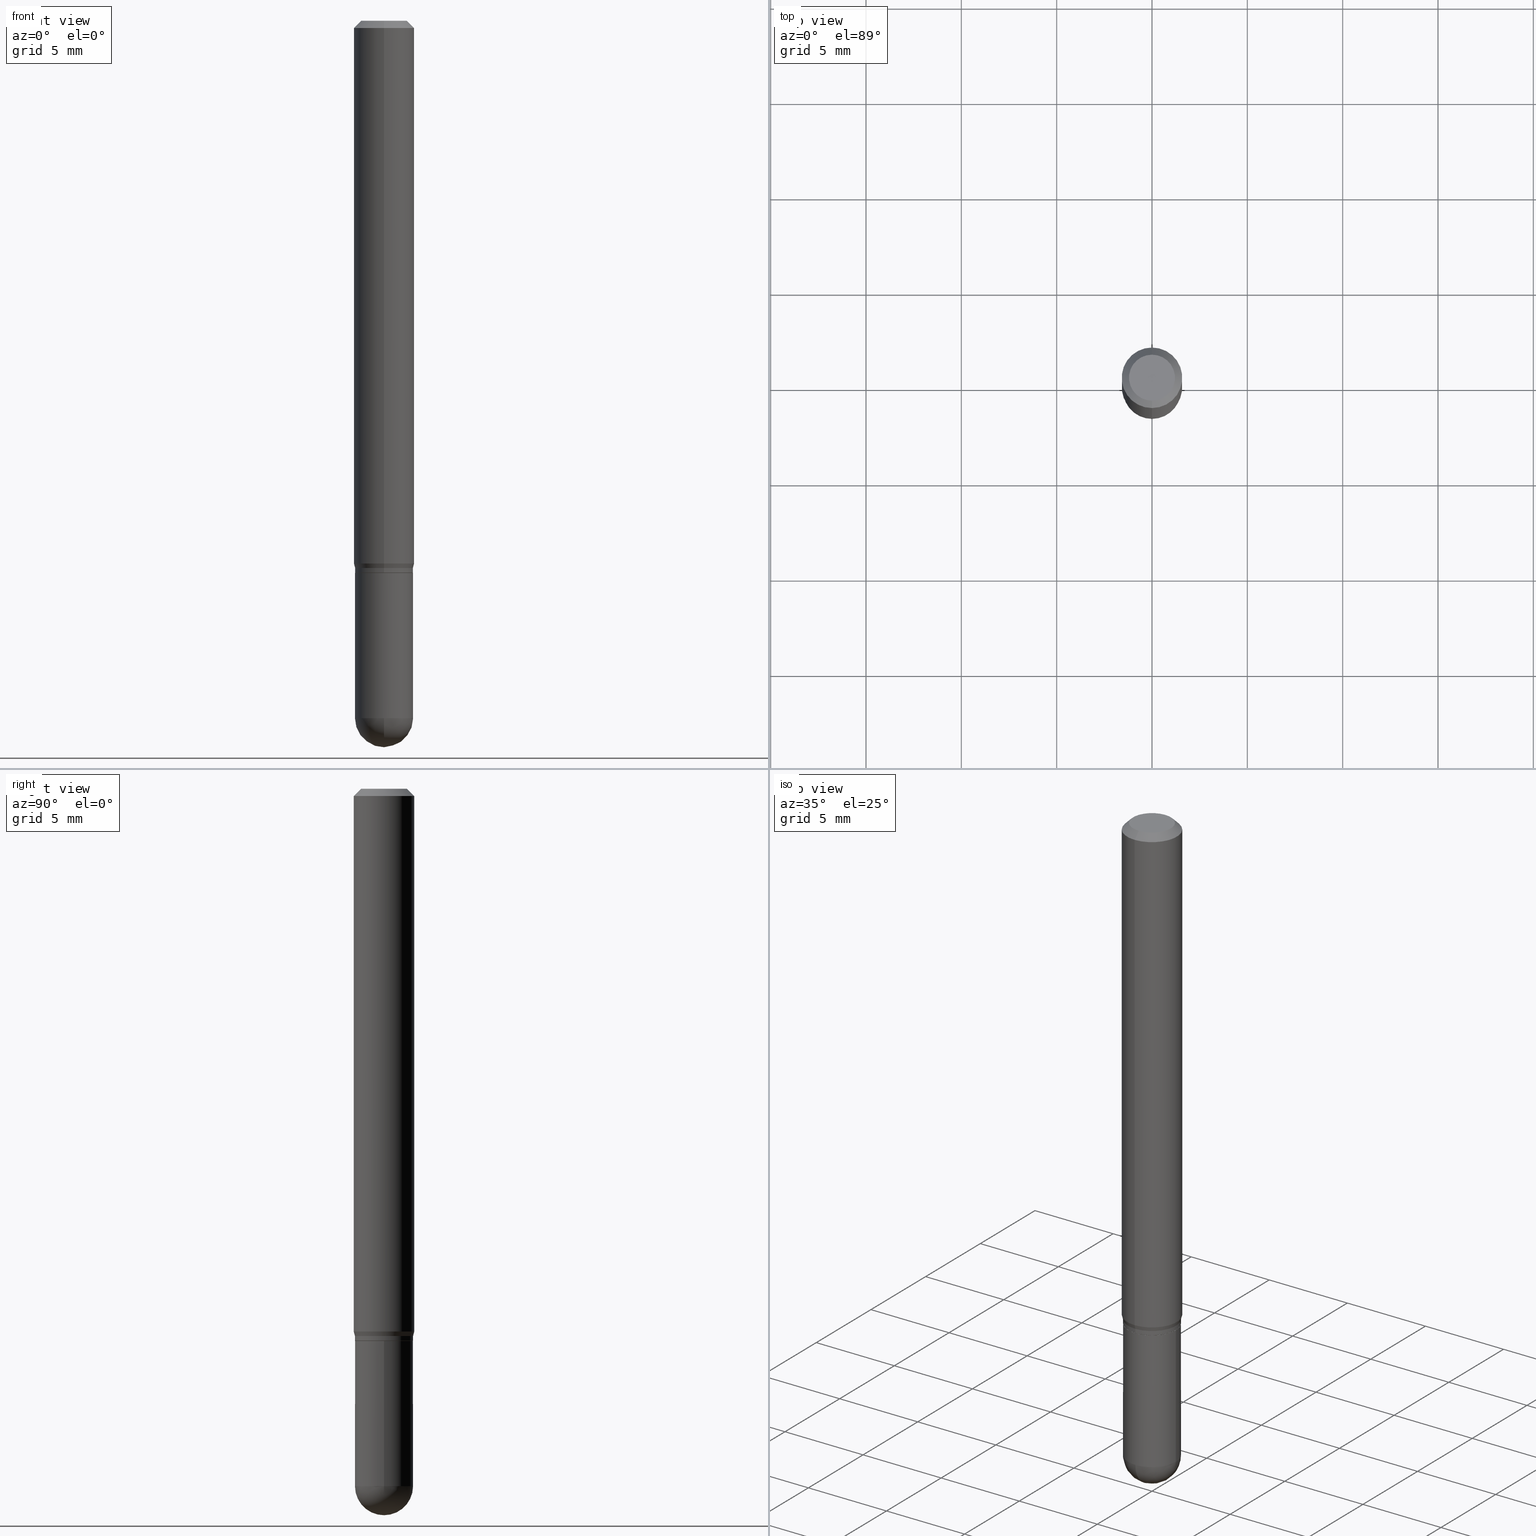
[diagram: canonical four-view strip — front | top / right | iso, engineering-drawing reading convention]
A machine part, canonical four-view strip (front | top / right | iso — engineering-drawing reading convention). The complete STEP part file that produces these views, byte-faithful:
ISO-10303-21;
HEADER;
FILE_DESCRIPTION (( 'STEP AP203' ),
    '1' );
FILE_NAME ('00951.STEP',
    '2024-03-07T19:09:57',
    ( '' ),
    ( '' ),
    'SwSTEP 2.0',
    'SolidWorks 2023',
    '' );
FILE_SCHEMA (( 'CONFIG_CONTROL_DESIGN' ));
ENDSEC;

DATA;
#1 = COORDINATED_UNIVERSAL_TIME_OFFSET ( 5, 0, .BEHIND. ) ;
#2 = DESIGN_CONTEXT ( 'detailed design', #499, 'design' ) ;
#3 = FACE_OUTER_BOUND ( 'NONE', #407, .T. ) ;
#4 = VERTEX_POINT ( 'NONE', #493 ) ;
#5 = CARTESIAN_POINT ( 'NONE',  ( -0.06000000000000001166, 4.263256414560601944E-16, -2.951361054152943763E-30 ) ) ;
#6 = VERTEX_POINT ( 'NONE', #62 ) ;
#7 = DIRECTION ( 'NONE',  ( -2.445441325104766561E-29, 3.491520693314361482E-15, 1.000000000000000000 ) ) ;
#8 = APPROVAL ( #31, 'UNSPECIFIED' ) ;
#9 = AXIS2_PLACEMENT_3D ( 'NONE', #135, #411, #301 ) ;
#10 = CC_DESIGN_SECURITY_CLASSIFICATION ( #512, ( #463 ) ) ;
#11 = CARTESIAN_POINT ( 'NONE',  ( 0.06000000000000001166, -4.189777606611760914E-16, 2.925706065477562106E-30 ) ) ;
#12 = ORIENTED_EDGE ( 'NONE', *, *, #358, .F. ) ;
#13 = FACE_OUTER_BOUND ( 'NONE', #124, .T. ) ;
#14 = AXIS2_PLACEMENT_3D ( 'NONE', #196, #434, #189 ) ;
#15 = FACE_OUTER_BOUND ( 'NONE', #284, .T. ) ;
#16 = EDGE_CURVE ( 'NONE', #379, #372, #134, .T. ) ;
#17 = PLANE ( 'NONE',  #52 ) ;
#18 = VERTEX_POINT ( 'NONE', #58 ) ;
#19 = AXIS2_PLACEMENT_3D ( 'NONE', #396, #433, #39 ) ;
#20 = AXIS2_PLACEMENT_3D ( 'NONE', #322, #238, #288 ) ;
#21 = PLANE ( 'NONE',  #320 ) ;
#22 = ORIENTED_EDGE ( 'NONE', *, *, #170, .T. ) ;
#23 = APPLICATION_CONTEXT ( 'configuration controlled 3d designs of mechanical parts and assemblies' ) ;
#24 = COORDINATED_UNIVERSAL_TIME_OFFSET ( 5, 0, .BEHIND. ) ;
#25 = CARTESIAN_POINT ( 'NONE',  ( 3.516344083171520973E-29, -5.035081008729014505E-15, -1.440000000000000169 ) ) ;
#26 = DIRECTION ( 'NONE',  ( -2.445441325104766561E-29, 3.491520693314361482E-15, 1.000000000000000000 ) ) ;
#27 = DIRECTION ( 'NONE',  ( -1.000000000000000000, 6.982962677686265922E-15, -4.883557194083112340E-29 ) ) ;
#28 = CONICAL_SURFACE ( 'NONE', #272, 0.06250000000000000000, 0.7853981633974483900 ) ;
#29 = APPROVAL_ROLE ( '' ) ;
#30 = LINE ( 'NONE', #185, #203 ) ;
#31 = APPROVAL_STATUS ( 'not_yet_approved' ) ;
#32 = EDGE_CURVE ( 'NONE', #399, #92, #45, .T. ) ;
#33 = AXIS2_PLACEMENT_3D ( 'NONE', #131, #212, #492 ) ;
#34 = DIRECTION ( 'NONE',  ( -6.982962677686265922E-15, -1.000000000000000000, 4.553079989440423315E-15 ) ) ;
#35 = CARTESIAN_POINT ( 'NONE',  ( 4.189777606612110478E-16, 0.05999999999999495320, -1.440000000000000391 ) ) ;
#36 = ORIENTED_EDGE ( 'NONE', *, *, #358, .T. ) ;
#37 = ADVANCED_FACE ( 'NONE', ( #223 ), #153, .T. ) ;
#38 = AXIS2_PLACEMENT_3D ( 'NONE', #46, #122, #357 ) ;
#39 = DIRECTION ( 'NONE',  ( -6.982962677686265922E-15, -1.000000000000000000, 4.370956789862821150E-15 ) ) ;
#40 = ORIENTED_EDGE ( 'NONE', *, *, #139, .F. ) ;
#41 = DIRECTION ( 'NONE',  ( -2.445468806185136597E-29, 3.491481338843145583E-15, 1.000000000000000000 ) ) ;
#42 = EDGE_CURVE ( 'NONE', #4, #379, #401, .T. ) ;
#43 = CARTESIAN_POINT ( 'NONE',  ( 2.740532419187838952E-29, -3.912842051887413141E-15, -1.120669872981078674 ) ) ;
#44 = ORIENTED_EDGE ( 'NONE', *, *, #154, .F. ) ;
#45 = CIRCLE ( 'NONE', #336, 0.06000000000000019901 ) ;
#46 = CARTESIAN_POINT ( 'NONE',  ( 0.000000000000000000, 0.000000000000000000, 0.000000000000000000 ) ) ;
#47 = ORIENTED_EDGE ( 'NONE', *, *, #373, .T. ) ;
#48 = EDGE_CURVE ( 'NONE', #417, #237, #177, .T. ) ;
#49 = DIRECTION ( 'NONE',  ( -6.982962677686265922E-15, -1.000000000000000000, 4.591341165822291216E-15 ) ) ;
#50 = ORIENTED_EDGE ( 'NONE', *, *, #107, .F. ) ;
#51 = CARTESIAN_POINT ( 'NONE',  ( -0.05999999999999999778, -4.077685285651597789E-15, -1.140000000000000124 ) ) ;
#52 = AXIS2_PLACEMENT_3D ( 'NONE', #404, #445, #330 ) ;
#53 = EDGE_LOOP ( 'NONE', ( #440, #36, #126, #365 ) ) ;
#54 =( GEOMETRIC_REPRESENTATION_CONTEXT ( 3 ) GLOBAL_UNCERTAINTY_ASSIGNED_CONTEXT ( ( #429 ) ) GLOBAL_UNIT_ASSIGNED_CONTEXT ( ( #142, #182, #109 ) ) REPRESENTATION_CONTEXT ( 'NONE', 'WORKASPACE' ) );
#55 = DATE_AND_TIME ( #377, #291 ) ;
#56 = SPHERICAL_SURFACE ( 'NONE', #119, 0.05999999999999995615 ) ;
#57 = PERSON_AND_ORGANIZATION ( #273, #380 ) ;
#58 = CARTESIAN_POINT ( 'NONE',  ( -4.189777606611479882E-16, -0.06000000000000396683, -1.139499999999999735 ) ) ;
#59 = CC_DESIGN_PERSON_AND_ORGANIZATION_ASSIGNMENT ( #220, #78, ( #463 ) ) ;
#60 = CARTESIAN_POINT ( 'NONE',  ( 4.189777606612038494E-16, 0.05999999999999602179, -1.140000000000000346 ) ) ;
#61 = PERSON_AND_ORGANIZATION ( #273, #380 ) ;
#62 = CARTESIAN_POINT ( 'NONE',  ( 3.665637710410167850E-29, -5.240895948662160894E-15, -1.500000000000000222 ) ) ;
#63 = DIRECTION ( 'NONE',  ( -2.445441325104766561E-29, 3.491520693314361482E-15, 1.000000000000000000 ) ) ;
#64 = AXIS2_PLACEMENT_3D ( 'NONE', #239, #310, #274 ) ;
#65 = PERSON_AND_ORGANIZATION ( #273, #380 ) ;
#66 = EDGE_CURVE ( 'NONE', #324, #243, #167, .T. ) ;
#67 = PERSON_AND_ORGANIZATION_ROLE ( 'design_supplier' ) ;
#68 = ORIENTED_EDGE ( 'NONE', *, *, #286, .T. ) ;
#69 = PERSON_AND_ORGANIZATION_ROLE ( 'classification_officer' ) ;
#70 = VECTOR ( 'NONE', #376, 39.37007874015748143 ) ;
#71 = CALENDAR_DATE ( 2024, 7, 3 ) ;
#72 = DIRECTION ( 'NONE',  ( -2.445441325104766561E-29, 3.491520693314361482E-15, 1.000000000000000000 ) ) ;
#73 = DIRECTION ( 'NONE',  ( -6.982962677686265922E-15, -1.000000000000000000, 4.591341165822291216E-15 ) ) ;
#74 = CARTESIAN_POINT ( 'NONE',  ( 4.440892098500625669E-16, 0.06250000000000000000, -2.182200433321475680E-16 ) ) ;
#75 = PERSON_AND_ORGANIZATION ( #273, #380 ) ;
#76 = EDGE_LOOP ( 'NONE', ( #166, #359, #290, #427 ) ) ;
#77 = DIRECTION ( 'NONE',  ( -2.445441325104766561E-29, 3.491520693314361482E-15, 1.000000000000000000 ) ) ;
#78 = PERSON_AND_ORGANIZATION_ROLE ( 'creator' ) ;
#79 = AXIS2_PLACEMENT_3D ( 'NONE', #281, #361, #209 ) ;
#80 = ORIENTED_EDGE ( 'NONE', *, *, #88, .F. ) ;
#81 = CARTESIAN_POINT ( 'NONE',  ( 2.787803110619434407E-29, -3.980333590378373068E-15, -1.140000000000000124 ) ) ;
#82 = EDGE_CURVE ( 'NONE', #228, #4, #306, .T. ) ;
#83 = AXIS2_PLACEMENT_3D ( 'NONE', #387, #283, #347 ) ;
#84 = DIRECTION ( 'NONE',  ( 1.000000000000000000, -6.982962677686266711E-15, 0.000000000000000000 ) ) ;
#85 = ORIENTED_EDGE ( 'NONE', *, *, #311, .F. ) ;
#86 = FACE_OUTER_BOUND ( 'NONE', #483, .T. ) ;
#87 = ORIENTED_EDGE ( 'NONE', *, *, #318, .T. ) ;
#88 = EDGE_CURVE ( 'NONE', #379, #417, #156, .T. ) ;
#89 = CIRCLE ( 'NONE', #497, 0.06000000000000019901 ) ;
#90 = AXIS2_PLACEMENT_3D ( 'NONE', #213, #342, #298 ) ;
#91 = DIRECTION ( 'NONE',  ( -6.982962677686265922E-15, -1.000000000000000000, 4.370956789862821150E-15 ) ) ;
#92 = VERTEX_POINT ( 'NONE', #319 ) ;
#93 = DIRECTION ( 'NONE',  ( -2.445441325104766561E-29, 3.491520693314361482E-15, 1.000000000000000000 ) ) ;
#94 = FACE_OUTER_BOUND ( 'NONE', #459, .T. ) ;
#95 = EDGE_LOOP ( 'NONE', ( #437, #217 ) ) ;
#96 = DIRECTION ( 'NONE',  ( 1.000000000000000000, -6.982962677686268288E-15, 0.000000000000000000 ) ) ;
#97 = ORIENTED_EDGE ( 'NONE', *, *, #464, .T. ) ;
#98 = CIRCLE ( 'NONE', #385, 0.06000000000000006023 ) ;
#99 = CARTESIAN_POINT ( 'NONE',  ( 2.787834439051055989E-29, -3.980288726281186698E-15, -1.140000000000000124 ) ) ;
#100 = CC_DESIGN_PERSON_AND_ORGANIZATION_ASSIGNMENT ( #172, #101, ( #173 ) ) ;
#101 = PERSON_AND_ORGANIZATION_ROLE ( 'design_owner' ) ;
#102 = CONICAL_SURFACE ( 'NONE', #83, 0.06250000000000000000, 0.7853981633974483900 ) ;
#103 = DIRECTION ( 'NONE',  ( -2.445468806185136597E-29, 3.491481338843145583E-15, 1.000000000000000000 ) ) ;
#104 = CARTESIAN_POINT ( 'NONE',  ( 4.245492846166878976E-16, 0.05949999999999602135, -1.140000000000000346 ) ) ;
#105 = FACE_OUTER_BOUND ( 'NONE', #150, .T. ) ;
#106 = COORDINATED_UNIVERSAL_TIME_OFFSET ( 5, 0, .BEHIND. ) ;
#107 = EDGE_CURVE ( 'NONE', #18, #399, #316, .T. ) ;
#108 = CLOSED_SHELL ( 'NONE', ( #302, #292, #276, #250, #123 ) ) ;
#109 =( NAMED_UNIT ( * ) SI_UNIT ( $, .STERADIAN. ) SOLID_ANGLE_UNIT ( ) );
#110 = ORIENTED_EDGE ( 'NONE', *, *, #412, .F. ) ;
#111 = AXIS2_PLACEMENT_3D ( 'NONE', #275, #72, #323 ) ;
#112 = VECTOR ( 'NONE', #415, 39.37007874015748143 ) ;
#113 = CARTESIAN_POINT ( 'NONE',  ( -4.364351673553912750E-16, -0.06250000000000005551, -0.01499999999999979128 ) ) ;
#114 = DIRECTION ( 'NONE',  ( 4.937700262164548042E-15, 0.7071067811865451302, -0.7071067811865499042 ) ) ;
#115 = EDGE_LOOP ( 'NONE', ( #435, #47, #197, #391 ) ) ;
#116 = CARTESIAN_POINT ( 'NONE',  ( 2.787803110619434407E-29, -3.980333590378373068E-15, -1.140000000000000124 ) ) ;
#117 = EDGE_CURVE ( 'NONE', #331, #193, #178, .T. ) ;
#118 = DIRECTION ( 'NONE',  ( 2.445441325104766561E-29, -3.491520693314361482E-15, -1.000000000000000000 ) ) ;
#119 = AXIS2_PLACEMENT_3D ( 'NONE', #449, #27, #335 ) ;
#120 = ORIENTED_EDGE ( 'NONE', *, *, #307, .F. ) ;
#121 = DIRECTION ( 'NONE',  ( -2.445468806185136597E-29, 3.491481338843145583E-15, 1.000000000000000000 ) ) ;
#122 = DIRECTION ( 'NONE',  ( -2.445468806185136597E-29, 3.491481338843145583E-15, 1.000000000000000000 ) ) ;
#123 = ADVANCED_FACE ( 'NONE', ( #244 ), #360, .T. ) ;
#124 = EDGE_LOOP ( 'NONE', ( #152, #97, #87, #210 ) ) ;
#125 = DIRECTION ( 'NONE',  ( -6.982962677686265922E-15, -1.000000000000000000, 3.491520693314361088E-15 ) ) ;
#126 = ORIENTED_EDGE ( 'NONE', *, *, #400, .T. ) ;
#127 = AXIS2_PLACEMENT_3D ( 'NONE', #43, #165, #91 ) ;
#128 = CARTESIAN_POINT ( 'NONE',  ( 0.000000000000000000, 0.000000000000000000, 0.000000000000000000 ) ) ;
#129 = ORIENTED_EDGE ( 'NONE', *, *, #222, .T. ) ;
#130 = ADVANCED_FACE ( 'NONE', ( #367 ), #398, .T. ) ;
#131 = CARTESIAN_POINT ( 'NONE',  ( 3.668161987657152172E-31, -5.237281039971545133E-17, -0.01500000000000000812 ) ) ;
#132 =( LENGTH_UNIT ( ) NAMED_UNIT ( * ) SI_UNIT ( $, .METRE. ) );
#133 = CARTESIAN_POINT ( 'NONE',  ( 3.521475080906597305E-29, -5.027733127934130649E-15, -1.440000000000000169 ) ) ;
#134 = CIRCLE ( 'NONE', #461, 0.06000000000000001166 ) ;
#135 = CARTESIAN_POINT ( 'NONE',  ( 0.000000000000000000, 0.000000000000000000, 0.000000000000000000 ) ) ;
#136 = CC_DESIGN_APPROVAL ( #258, ( #512 ) ) ;
#137 = LINE ( 'NONE', #251, #70 ) ;
#138 = CALENDAR_DATE ( 2024, 7, 3 ) ;
#139 = EDGE_CURVE ( 'NONE', #354, #287, #484, .T. ) ;
#140 = LINE ( 'NONE', #422, #332 ) ;
#141 = AXIS2_PLACEMENT_3D ( 'NONE', #224, #199, #73 ) ;
#142 =( CONVERSION_BASED_UNIT ( 'INCH', #498 ) LENGTH_UNIT ( ) NAMED_UNIT ( #234 ) );
#143 = VECTOR ( 'NONE', #349, 39.37007874015748143 ) ;
#144 = PERSON_AND_ORGANIZATION ( #273, #380 ) ;
#145 = CARTESIAN_POINT ( 'NONE',  ( -4.189777606611496152E-16, -0.06000000000000414030, -1.129999999999999893 ) ) ;
#146 = APPROVAL ( #375, 'UNSPECIFIED' ) ;
#147 = COORDINATED_UNIVERSAL_TIME_OFFSET ( 5, 0, .BEHIND. ) ;
#148 = DIRECTION ( 'NONE',  ( -6.982962677686265922E-15, -1.000000000000000000, 4.553079989440423315E-15 ) ) ;
#149 = CARTESIAN_POINT ( 'NONE',  ( 3.516344083171520973E-29, -5.035081008729014505E-15, -1.440000000000000169 ) ) ;
#150 = EDGE_LOOP ( 'NONE', ( #246, #129 ) ) ;
#151 = CC_DESIGN_APPROVAL ( #8, ( #242 ) ) ;
#152 = ORIENTED_EDGE ( 'NONE', *, *, #190, .F. ) ;
#153 = CYLINDRICAL_SURFACE ( 'NONE', #111, 0.06000000000000012962 ) ;
#154 = EDGE_CURVE ( 'NONE', #372, #228, #402, .T. ) ;
#155 = CONICAL_SURFACE ( 'NONE', #351, 0.06000000000000019901, 0.2617993877991505181 ) ;
#156 = LINE ( 'NONE', #11, #451 ) ;
#157 = LINE ( 'NONE', #317, #327 ) ;
#158 = ORIENTED_EDGE ( 'NONE', *, *, #326, .T. ) ;
#159 = CARTESIAN_POINT ( 'NONE',  ( 3.668161987657152172E-31, -5.237281039971545133E-17, -0.01500000000000000812 ) ) ;
#160 = AXIS2_PLACEMENT_3D ( 'NONE', #25, #295, #254 ) ;
#161 = EDGE_CURVE ( 'NONE', #243, #491, #479, .T. ) ;
#162 = CARTESIAN_POINT ( 'NONE',  ( -3.773273898774340269E-16, -0.04749999999999999362, 1.569887826779837937E-16 ) ) ;
#163 = EDGE_LOOP ( 'NONE', ( #481, #315, #509, #44 ) ) ;
#164 = CARTESIAN_POINT ( 'NONE',  ( 3.521475080906597305E-29, -5.027733127934130649E-15, -1.440000000000000169 ) ) ;
#165 = DIRECTION ( 'NONE',  ( -2.445441325104766561E-29, 3.491520693314361482E-15, 1.000000000000000000 ) ) ;
#166 = ORIENTED_EDGE ( 'NONE', *, *, #32, .T. ) ;
#167 = CIRCLE ( 'NONE', #19, 0.06250000000000000000 ) ;
#168 = FACE_OUTER_BOUND ( 'NONE', #163, .T. ) ;
#169 = ORIENTED_EDGE ( 'NONE', *, *, #214, .T. ) ;
#170 = EDGE_CURVE ( 'NONE', #243, #324, #467, .T. ) ;
#171 = DIRECTION ( 'NONE',  ( -2.445468806185136877E-29, 3.491481338843145188E-15, 1.000000000000000000 ) ) ;
#172 = PERSON_AND_ORGANIZATION ( #273, #380 ) ;
#173 = PRODUCT ( '00951', '00951', '', ( #265 ) ) ;
#174 = CARTESIAN_POINT ( 'NONE',  ( 2.786580389956881878E-29, -3.978587830031715585E-15, -1.139500000000000179 ) ) ;
#175 = CARTESIAN_POINT ( 'NONE',  ( 0.000000000000000000, 0.000000000000000000, 0.000000000000000000 ) ) ;
#176 = CARTESIAN_POINT ( 'NONE',  ( 2.763348697368386624E-29, -3.945418383445228933E-15, -1.130000000000000115 ) ) ;
#177 = CIRCLE ( 'NONE', #355, 0.05999999999999999778 ) ;
#178 = CIRCLE ( 'NONE', #486, 0.04749999999999999362 ) ;
#179 = CARTESIAN_POINT ( 'NONE',  ( 4.263256414560887906E-16, 0.05999999999999614669, -1.139500000000000401 ) ) ;
#180 = LOCAL_TIME ( 14, 9, 57.00000000000000000, #24 ) ;
#181 = ADVANCED_FACE ( 'NONE', ( #202 ), #245, .T. ) ;
#182 =( NAMED_UNIT ( * ) PLANE_ANGLE_UNIT ( ) SI_UNIT ( $, .RADIAN. ) );
#183 = ORIENTED_EDGE ( 'NONE', *, *, #389, .T. ) ;
#184 = AXIS2_PLACEMENT_3D ( 'NONE', #116, #227, #278 ) ;
#185 = CARTESIAN_POINT ( 'NONE',  ( 4.263256414560890864E-16, 0.05999999999999625078, -1.130000000000000338 ) ) ;
#186 = ORIENTED_EDGE ( 'NONE', *, *, #230, .T. ) ;
#187 = DATE_AND_TIME ( #138, #180 ) ;
#188 = PERSON_AND_ORGANIZATION ( #273, #380 ) ;
#189 = DIRECTION ( 'NONE',  ( -6.982962677686265922E-15, -1.000000000000000000, 3.491520693314361482E-15 ) ) ;
#190 = EDGE_CURVE ( 'NONE', #287, #240, #248, .T. ) ;
#191 = LINE ( 'NONE', #74, #143 ) ;
#192 = DIRECTION ( 'NONE',  ( -7.105427357601001070E-15, -1.000000000000000000, 0.000000000000000000 ) ) ;
#193 = VERTEX_POINT ( 'NONE', #162 ) ;
#194 = ADVANCED_FACE ( 'NONE', ( #86 ), #28, .T. ) ;
#195 = AXIS2_PLACEMENT_3D ( 'NONE', #439, #7, #125 ) ;
#196 = CARTESIAN_POINT ( 'NONE',  ( 2.787803110619434407E-29, -3.980333590378373068E-15, -1.140000000000000124 ) ) ;
#197 = ORIENTED_EDGE ( 'NONE', *, *, #16, .F. ) ;
#198 = DIRECTION ( 'NONE',  ( -2.445441325104766281E-29, 3.491520693314361482E-15, 1.000000000000000000 ) ) ;
#199 = DIRECTION ( 'NONE',  ( -2.445441325104766561E-29, 3.491520693314361482E-15, 1.000000000000000000 ) ) ;
#200 = ORIENTED_EDGE ( 'NONE', *, *, #161, .T. ) ;
#201 = DIRECTION ( 'NONE',  ( 1.000000000000000000, -6.982962677686266711E-15, 0.000000000000000000 ) ) ;
#202 = FACE_OUTER_BOUND ( 'NONE', #76, .T. ) ;
#203 = VECTOR ( 'NONE', #293, 39.37007874015748854 ) ;
#204 = ORIENTED_EDGE ( 'NONE', *, *, #16, .T. ) ;
#205 = LOCAL_TIME ( 14, 9, 57.00000000000000000, #106 ) ;
#206 = ADVANCED_FACE ( 'NONE', ( #13 ), #393, .T. ) ;
#207 = CARTESIAN_POINT ( 'NONE',  ( 4.227729277772874483E-16, 0.05949999999999602135, -1.140000000000000346 ) ) ;
#208 = ORIENTED_EDGE ( 'NONE', *, *, #464, .F. ) ;
#209 = DIRECTION ( 'NONE',  ( -6.982962677686265922E-15, -1.000000000000000000, 4.553079989440423315E-15 ) ) ;
#210 = ORIENTED_EDGE ( 'NONE', *, *, #326, .F. ) ;
#211 = ADVANCED_FACE ( 'NONE', ( #15 ), #329, .T. ) ;
#212 = DIRECTION ( 'NONE',  ( -2.445441325104766561E-29, 3.491520693314361482E-15, 1.000000000000000000 ) ) ;
#213 = CARTESIAN_POINT ( 'NONE',  ( 0.000000000000000000, 0.000000000000000000, 0.000000000000000000 ) ) ;
#214 = EDGE_CURVE ( 'NONE', #228, #237, #394, .T. ) ;
#215 = DIRECTION ( 'NONE',  ( -2.445441325104766561E-29, 3.491520693314361482E-15, 1.000000000000000000 ) ) ;
#216 = COORDINATED_UNIVERSAL_TIME_OFFSET ( 5, 0, .BEHIND. ) ;
#217 = ORIENTED_EDGE ( 'NONE', *, *, #311, .T. ) ;
#218 = VECTOR ( 'NONE', #198, 39.37007874015748143 ) ;
#219 = DIRECTION ( 'NONE',  ( -6.982962677686265922E-15, -1.000000000000000000, 4.553079989440434359E-15 ) ) ;
#220 = PERSON_AND_ORGANIZATION ( #273, #380 ) ;
#221 = CALENDAR_DATE ( 2024, 7, 3 ) ;
#222 = EDGE_CURVE ( 'NONE', #237, #417, #282, .T. ) ;
#223 = FACE_OUTER_BOUND ( 'NONE', #410, .T. ) ;
#224 = CARTESIAN_POINT ( 'NONE',  ( 2.787803110619434407E-29, -3.980333590378373068E-15, -1.140000000000000124 ) ) ;
#225 = AXIS2_PLACEMENT_3D ( 'NONE', #304, #215, #502 ) ;
#226 = APPROVAL_PERSON_ORGANIZATION ( #61, #8, #501 ) ;
#227 = DIRECTION ( 'NONE',  ( -2.445441325104766561E-29, 3.491520693314361482E-15, 1.000000000000000000 ) ) ;
#228 = VERTEX_POINT ( 'NONE', #444 ) ;
#229 = ORIENTED_EDGE ( 'NONE', *, *, #286, .F. ) ;
#230 = EDGE_CURVE ( 'NONE', #233, #491, #337, .T. ) ;
#231 = SHAPE_DEFINITION_REPRESENTATION ( #416, #366 ) ;
#232 = FACE_OUTER_BOUND ( 'NONE', #249, .T. ) ;
#233 = VERTEX_POINT ( 'NONE', #452 ) ;
#234 = DIMENSIONAL_EXPONENTS ( 1.000000000000000000, 0.000000000000000000, 0.000000000000000000, 0.000000000000000000, 0.000000000000000000, 0.000000000000000000, 0.000000000000000000 ) ;
#235 = CARTESIAN_POINT ( 'NONE',  ( -4.189777606611768802E-16, -0.06000000000000012962, 2.094912415988621258E-16 ) ) ;
#236 = AXIS2_PLACEMENT_3D ( 'NONE', #81, #438, #49 ) ;
#237 = VERTEX_POINT ( 'NONE', #51 ) ;
#238 = DIRECTION ( 'NONE',  ( -2.445441325104766561E-29, 3.491520693314361482E-15, 1.000000000000000000 ) ) ;
#239 = CARTESIAN_POINT ( 'NONE',  ( 3.521475080906597305E-29, -5.027733127934130649E-15, -1.440000000000000169 ) ) ;
#240 = VERTEX_POINT ( 'NONE', #179 ) ;
#241 = DIRECTION ( 'NONE',  ( -2.445441325104766281E-29, 3.491520693314361482E-15, 1.000000000000000000 ) ) ;
#242 = PRODUCT_DEFINITION ( 'UNKNOWN', '', #463, #2 ) ;
#243 = VERTEX_POINT ( 'NONE', #256 ) ;
#244 = FACE_OUTER_BOUND ( 'NONE', #475, .T. ) ;
#245 = CONICAL_SURFACE ( 'NONE', #79, 0.06000000000000019901, 0.2617993877991505181 ) ;
#246 = ORIENTED_EDGE ( 'NONE', *, *, #48, .T. ) ;
#247 = AXIS2_PLACEMENT_3D ( 'NONE', #175, #26, #460 ) ;
#248 = LINE ( 'NONE', #207, #262 ) ;
#249 = EDGE_LOOP ( 'NONE', ( #40, #208 ) ) ;
#250 = ADVANCED_FACE ( 'NONE', ( #408 ), #56, .T. ) ;
#251 = CARTESIAN_POINT ( 'NONE',  ( -4.154862793223048825E-16, -0.05950000000000398026, -1.139999999999999902 ) ) ;
#252 = CYLINDRICAL_SURFACE ( 'NONE', #247, 0.06250000000000000000 ) ;
#253 = ORIENTED_EDGE ( 'NONE', *, *, #82, .T. ) ;
#254 = DIRECTION ( 'NONE',  ( 6.982962677686265922E-15, 1.000000000000000000, -4.553079989440442247E-15 ) ) ;
#255 = CIRCLE ( 'NONE', #33, 0.06250000000000000000 ) ;
#256 = CARTESIAN_POINT ( 'NONE',  ( -4.364351673553640100E-16, -0.06250000000000388578, -1.120669872981078452 ) ) ;
#257 = DATE_TIME_ROLE ( 'creation_date' ) ;
#258 = APPROVAL ( #269, 'UNSPECIFIED' ) ;
#259 = LINE ( 'NONE', #341, #112 ) ;
#260 = CYLINDRICAL_SURFACE ( 'NONE', #9, 0.06000000000000001166 ) ;
#261 = CIRCLE ( 'NONE', #141, 0.05949999999999999734 ) ;
#262 = VECTOR ( 'NONE', #368, 39.37007874015748143 ) ;
#263 = DIRECTION ( 'NONE',  ( 1.000000000000000000, -6.982962677686265922E-15, 4.883557194083112340E-29 ) ) ;
#264 = LOCAL_TIME ( 14, 9, 57.00000000000000000, #1 ) ;
#265 = MECHANICAL_CONTEXT ( 'NONE', #23, 'mechanical' ) ;
#266 = LINE ( 'NONE', #382, #395 ) ;
#267 = EDGE_CURVE ( 'NONE', #491, #233, #255, .T. ) ;
#268 = DIRECTION ( 'NONE',  ( 6.982962677686265922E-15, 1.000000000000000000, 0.000000000000000000 ) ) ;
#269 = APPROVAL_STATUS ( 'not_yet_approved' ) ;
#270 = DIRECTION ( 'NONE',  ( -1.000000000000000000, 7.105427357601001070E-15, -4.926315508542082329E-29 ) ) ;
#271 = ORIENTED_EDGE ( 'NONE', *, *, #107, .T. ) ;
#272 = AXIS2_PLACEMENT_3D ( 'NONE', #159, #118, #403 ) ;
#273 = PERSON ( 'UNSPECIFIED', 'UNSPECIFIED', 'UNSPECIFIED', ('UNSPECIFIED'), ('UNSPECIFIED'), ('UNSPECIFIED') ) ;
#274 = DIRECTION ( 'NONE',  ( 1.000000000000000000, -6.982962677686266711E-15, 0.000000000000000000 ) ) ;
#275 = CARTESIAN_POINT ( 'NONE',  ( 0.000000000000000000, 0.000000000000000000, 0.000000000000000000 ) ) ;
#276 = ADVANCED_FACE ( 'NONE', ( #105 ), #21, .F. ) ;
#277 = CARTESIAN_POINT ( 'NONE',  ( 3.516344083171520973E-29, -5.035081008729014505E-15, -1.440000000000000169 ) ) ;
#278 = DIRECTION ( 'NONE',  ( -6.982962677686265922E-15, -1.000000000000000000, 4.591341165822291216E-15 ) ) ;
#279 = EDGE_LOOP ( 'NONE', ( #22, #183, #488, #507 ) ) ;
#280 = FACE_OUTER_BOUND ( 'NONE', #53, .T. ) ;
#281 = CARTESIAN_POINT ( 'NONE',  ( 2.763348697368386624E-29, -3.945418383445228933E-15, -1.130000000000000115 ) ) ;
#282 = CIRCLE ( 'NONE', #476, 0.05999999999999999778 ) ;
#283 = DIRECTION ( 'NONE',  ( 2.445441325104766561E-29, -3.491520693314361482E-15, -1.000000000000000000 ) ) ;
#284 = EDGE_LOOP ( 'NONE', ( #68, #388, #353, #50 ) ) ;
#285 = CARTESIAN_POINT ( 'NONE',  ( 2.787834439051055989E-29, -3.980288726281186698E-15, -1.140000000000000124 ) ) ;
#286 = EDGE_CURVE ( 'NONE', #18, #240, #98, .T. ) ;
#287 = VERTEX_POINT ( 'NONE', #104 ) ;
#288 = DIRECTION ( 'NONE',  ( -6.982962677686265922E-15, -1.000000000000000000, 4.591341165822291216E-15 ) ) ;
#289 = CARTESIAN_POINT ( 'NONE',  ( -4.364351673553916201E-16, -0.06250000000000000000, 2.182200433321475680E-16 ) ) ;
#290 = ORIENTED_EDGE ( 'NONE', *, *, #170, .F. ) ;
#291 = LOCAL_TIME ( 14, 9, 57.00000000000000000, #216 ) ;
#292 = ADVANCED_FACE ( 'NONE', ( #168 ), #374, .T. ) ;
#293 = DIRECTION ( 'NONE',  ( 1.839019923739601893E-15, 0.2588190451025252359, 0.9659258262890670910 ) ) ;
#294 = ORIENTED_EDGE ( 'NONE', *, *, #154, .T. ) ;
#295 = DIRECTION ( 'NONE',  ( -1.000000000000000000, 6.982962677686265922E-15, -4.883557194083112340E-29 ) ) ;
#296 = FACE_OUTER_BOUND ( 'NONE', #95, .T. ) ;
#297 = DIRECTION ( 'NONE',  ( -1.000000000000000000, 6.982962677686265922E-15, -4.876176775795935793E-29 ) ) ;
#298 = DIRECTION ( 'NONE',  ( 1.000000000000000000, 0.000000000000000000, 0.000000000000000000 ) ) ;
#299 = DIRECTION ( 'NONE',  ( 1.000000000000000000, -6.982962677686266711E-15, 0.000000000000000000 ) ) ;
#300 = CIRCLE ( 'NONE', #225, 0.04749999999999999362 ) ;
#301 = DIRECTION ( 'NONE',  ( 1.000000000000000000, -6.982962677686266711E-15, 4.876176775795935793E-29 ) ) ;
#302 = ADVANCED_FACE ( 'NONE', ( #494 ), #260, .T. ) ;
#303 = EDGE_LOOP ( 'NONE', ( #294, #169, #369, #80, #204 ) ) ;
#304 = CARTESIAN_POINT ( 'NONE',  ( 2.166282032861282342E-46, -3.092946237410227591E-32, -8.858450254448349197E-18 ) ) ;
#305 = DIRECTION ( 'NONE',  ( -1.807323732225331717E-15, -0.2588190451025184080, 0.9659258262890689783 ) ) ;
#306 = CIRCLE ( 'NONE', #362, 0.06000000000000001166 ) ;
#307 = EDGE_CURVE ( 'NONE', #193, #491, #259, .T. ) ;
#308 = VECTOR ( 'NONE', #171, 39.37007874015748143 ) ;
#309 = DIRECTION ( 'NONE',  ( -2.445441325104766561E-29, 3.491520693314361482E-15, 1.000000000000000000 ) ) ;
#310 = DIRECTION ( 'NONE',  ( -2.445468806185136597E-29, 3.491481338843145583E-15, 1.000000000000000000 ) ) ;
#311 = EDGE_CURVE ( 'NONE', #193, #331, #300, .T. ) ;
#312 = EDGE_LOOP ( 'NONE', ( #85, #431, #442, #110 ) ) ;
#313 = AXIS2_PLACEMENT_3D ( 'NONE', #419, #63, #219 ) ;
#314 = CARTESIAN_POINT ( 'NONE',  ( -4.154862793223048825E-16, -0.05950000000000398026, -1.139999999999999902 ) ) ;
#315 = ORIENTED_EDGE ( 'NONE', *, *, #455, .T. ) ;
#316 = LINE ( 'NONE', #235, #218 ) ;
#317 = CARTESIAN_POINT ( 'NONE',  ( 4.263256414560609832E-16, 0.06000000000000012962, -2.094912415988621258E-16 ) ) ;
#318 = EDGE_CURVE ( 'NONE', #354, #18, #137, .T. ) ;
#319 = CARTESIAN_POINT ( 'NONE',  ( 4.352074256530896070E-16, 0.05999999999999625078, -1.130000000000000338 ) ) ;
#320 = AXIS2_PLACEMENT_3D ( 'NONE', #60, #500, #297 ) ;
#321 = ORIENTED_EDGE ( 'NONE', *, *, #88, .T. ) ;
#322 = CARTESIAN_POINT ( 'NONE',  ( 2.787803110619434407E-29, -3.980333590378373068E-15, -1.140000000000000124 ) ) ;
#323 = DIRECTION ( 'NONE',  ( -6.982962677686265922E-15, -1.000000000000000000, 3.491520693314361088E-15 ) ) ;
#324 = VERTEX_POINT ( 'NONE', #457 ) ;
#325 = DIRECTION ( 'NONE',  ( -2.445468806185136877E-29, 3.491481338843145188E-15, 1.000000000000000000 ) ) ;
#326 = EDGE_CURVE ( 'NONE', #240, #18, #363, .T. ) ;
#327 = VECTOR ( 'NONE', #474, 39.37007874015748143 ) ;
#328 = ORIENTED_EDGE ( 'NONE', *, *, #139, .T. ) ;
#329 = CYLINDRICAL_SURFACE ( 'NONE', #504, 0.06000000000000012962 ) ;
#330 = DIRECTION ( 'NONE',  ( 6.982962677686265922E-15, 1.000000000000000000, -3.491520693314361482E-15 ) ) ;
#331 = VERTEX_POINT ( 'NONE', #381 ) ;
#332 = VECTOR ( 'NONE', #305, 39.37007874015748854 ) ;
#333 = DIRECTION ( 'NONE',  ( -6.982962677686265922E-15, -1.000000000000000000, 3.483106191921935554E-15 ) ) ;
#334 = CC_DESIGN_DATE_AND_TIME_ASSIGNMENT ( #55, #257, ( #242 ) ) ;
#335 = DIRECTION ( 'NONE',  ( 6.982962677686265922E-15, 1.000000000000000000, -4.553079989440442247E-15 ) ) ;
#336 = AXIS2_PLACEMENT_3D ( 'NONE', #176, #338, #148 ) ;
#337 = CIRCLE ( 'NONE', #345, 0.06250000000000000000 ) ;
#338 = DIRECTION ( 'NONE',  ( -2.445441325104766561E-29, 3.491520693314361482E-15, 1.000000000000000000 ) ) ;
#339 = DIRECTION ( 'NONE',  ( -2.445441325104766561E-29, 3.491520693314361482E-15, 1.000000000000000000 ) ) ;
#340 = APPLICATION_PROTOCOL_DEFINITION ( 'international standard', 'config_control_design', 1994, #23 ) ;
#341 = CARTESIAN_POINT ( 'NONE',  ( -4.287811248607203282E-16, -0.06250000000000005551, -0.01499999999999979128 ) ) ;
#342 = DIRECTION ( 'NONE',  ( 0.000000000000000000, 0.000000000000000000, 1.000000000000000000 ) ) ;
#343 = EDGE_CURVE ( 'NONE', #92, #324, #30, .T. ) ;
#344 = APPROVAL_DATE_TIME ( #187, #8 ) ;
#345 = AXIS2_PLACEMENT_3D ( 'NONE', #490, #339, #333 ) ;
#346 = APPROVAL_ROLE ( '' ) ;
#347 = DIRECTION ( 'NONE',  ( 6.982962677686265922E-15, 1.000000000000000000, -3.483106191921935554E-15 ) ) ;
#348 = CC_DESIGN_PERSON_AND_ORGANIZATION_ASSIGNMENT ( #188, #69, ( #512 ) ) ;
#349 = DIRECTION ( 'NONE',  ( -2.445441325104766281E-29, 3.491520693314361482E-15, 1.000000000000000000 ) ) ;
#350 = APPROVAL_DATE_TIME ( #428, #258 ) ;
#351 = AXIS2_PLACEMENT_3D ( 'NONE', #506, #383, #34 ) ;
#352 = CARTESIAN_POINT ( 'NONE',  ( 0.05999999999999999778, -4.399266486942362543E-15, -1.140000000000000124 ) ) ;
#353 = ORIENTED_EDGE ( 'NONE', *, *, #32, .F. ) ;
#354 = VERTEX_POINT ( 'NONE', #314 ) ;
#355 = AXIS2_PLACEMENT_3D ( 'NONE', #285, #406, #441 ) ;
#356 = ORIENTED_EDGE ( 'NONE', *, *, #318, .F. ) ;
#357 = DIRECTION ( 'NONE',  ( 1.000000000000000000, -6.982962677686266711E-15, 4.876176775795935793E-29 ) ) ;
#358 = EDGE_CURVE ( 'NONE', #92, #399, #89, .T. ) ;
#359 = ORIENTED_EDGE ( 'NONE', *, *, #343, .T. ) ;
#360 = CYLINDRICAL_SURFACE ( 'NONE', #38, 0.06000000000000001166 ) ;
#361 = DIRECTION ( 'NONE',  ( -2.445441325104766561E-29, 3.491520693314361482E-15, 1.000000000000000000 ) ) ;
#362 = AXIS2_PLACEMENT_3D ( 'NONE', #164, #41, #201 ) ;
#363 = CIRCLE ( 'NONE', #313, 0.06000000000000006023 ) ;
#364 = APPROVAL_PERSON_ORGANIZATION ( #65, #146, #29 ) ;
#365 = ORIENTED_EDGE ( 'NONE', *, *, #66, .F. ) ;
#366 = ADVANCED_BREP_SHAPE_REPRESENTATION ( '00951', ( #450, #454, #90 ), #54 ) ;
#367 = FACE_OUTER_BOUND ( 'NONE', #279, .T. ) ;
#368 = DIRECTION ( 'NONE',  ( 5.024295867788190974E-15, 0.7071067811865681119, 0.7071067811865270336 ) ) ;
#369 = ORIENTED_EDGE ( 'NONE', *, *, #48, .F. ) ;
#370 = ORIENTED_EDGE ( 'NONE', *, *, #230, .F. ) ;
#371 = DIRECTION ( 'NONE',  ( -2.445468806185136597E-29, 3.491481338843145583E-15, 1.000000000000000000 ) ) ;
#372 = VERTEX_POINT ( 'NONE', #35 ) ;
#373 = EDGE_CURVE ( 'NONE', #6, #372, #378, .T. ) ;
#374 = SPHERICAL_SURFACE ( 'NONE', #160, 0.05999999999999995615 ) ;
#375 = APPROVAL_STATUS ( 'not_yet_approved' ) ;
#376 = DIRECTION ( 'NONE',  ( -4.937700262164674260E-15, -0.7071067811865632269, 0.7071067811865319186 ) ) ;
#377 = CALENDAR_DATE ( 2024, 7, 3 ) ;
#378 = CIRCLE ( 'NONE', #413, 0.05999999999999995615 ) ;
#379 = VERTEX_POINT ( 'NONE', #465 ) ;
#380 = ORGANIZATION ( 'UNSPECIFIED', 'UNSPECIFIED', '' ) ;
#381 = CARTESIAN_POINT ( 'NONE',  ( 3.840629472727447874E-16, 0.04749999999999999362, -1.747056831868805136E-16 ) ) ;
#382 = CARTESIAN_POINT ( 'NONE',  ( 4.364351673553919652E-16, 0.06249999999999995143, -0.01500000000000022669 ) ) ;
#383 = DIRECTION ( 'NONE',  ( -2.445441325104766561E-29, 3.491520693314361482E-15, 1.000000000000000000 ) ) ;
#384 = ORIENTED_EDGE ( 'NONE', *, *, #66, .T. ) ;
#385 = AXIS2_PLACEMENT_3D ( 'NONE', #174, #93, #414 ) ;
#386 = CARTESIAN_POINT ( 'NONE',  ( 2.763348697368386624E-29, -3.945418383445228933E-15, -1.130000000000000115 ) ) ;
#387 = CARTESIAN_POINT ( 'NONE',  ( 3.668161987657152172E-31, -5.237281039971545133E-17, -0.01500000000000000812 ) ) ;
#388 = ORIENTED_EDGE ( 'NONE', *, *, #471, .T. ) ;
#389 = EDGE_CURVE ( 'NONE', #324, #233, #191, .T. ) ;
#390 = SECURITY_CLASSIFICATION_LEVEL ( 'unclassified' ) ;
#391 = ORIENTED_EDGE ( 'NONE', *, *, #42, .F. ) ;
#392 = CLOSED_SHELL ( 'NONE', ( #211, #418, #489, #130, #181, #432, #511, #194, #505, #447, #206, #37 ) ) ;
#393 = CONICAL_SURFACE ( 'NONE', #20, 0.05949999999999999734, 0.7853981633974739252 ) ;
#394 = LINE ( 'NONE', #5, #308 ) ;
#395 = VECTOR ( 'NONE', #114, 39.37007874015748143 ) ;
#396 = CARTESIAN_POINT ( 'NONE',  ( 2.740532419187838952E-29, -3.912842051887413141E-15, -1.120669872981078674 ) ) ;
#397 = PRODUCT_RELATED_PRODUCT_CATEGORY ( 'detail', '', ( #173 ) ) ;
#398 = CYLINDRICAL_SURFACE ( 'NONE', #195, 0.06250000000000000000 ) ;
#399 = VERTEX_POINT ( 'NONE', #145 ) ;
#400 = EDGE_CURVE ( 'NONE', #399, #243, #140, .T. ) ;
#401 = CIRCLE ( 'NONE', #64, 0.06000000000000001166 ) ;
#402 = CIRCLE ( 'NONE', #462, 0.06000000000000001166 ) ;
#403 = DIRECTION ( 'NONE',  ( 6.982962677686265922E-15, 1.000000000000000000, -3.483106191921935554E-15 ) ) ;
#404 = CARTESIAN_POINT ( 'NONE',  ( 3.316907271900976096E-16, 0.04749999999999999362, -1.702764580596563336E-16 ) ) ;
#405 = ORIENTED_EDGE ( 'NONE', *, *, #117, .F. ) ;
#406 = DIRECTION ( 'NONE',  ( -2.445468806185136597E-29, 3.491481338843145583E-15, 1.000000000000000000 ) ) ;
#407 = EDGE_LOOP ( 'NONE', ( #328, #478, #229, #356 ) ) ;
#408 = FACE_OUTER_BOUND ( 'NONE', #115, .T. ) ;
#409 = AXIS2_PLACEMENT_3D ( 'NONE', #149, #270, #192 ) ;
#410 = EDGE_LOOP ( 'NONE', ( #472, #158, #271, #12 ) ) ;
#411 = DIRECTION ( 'NONE',  ( -2.445468806185136597E-29, 3.491481338843145583E-15, 1.000000000000000000 ) ) ;
#412 = EDGE_CURVE ( 'NONE', #331, #233, #266, .T. ) ;
#413 = AXIS2_PLACEMENT_3D ( 'NONE', #277, #263, #268 ) ;
#414 = DIRECTION ( 'NONE',  ( -6.982962677686265922E-15, -1.000000000000000000, 4.553079989440434359E-15 ) ) ;
#415 = DIRECTION ( 'NONE',  ( -4.851104656540964275E-15, -0.7071067811865500152, -0.7071067811865450192 ) ) ;
#416 = PRODUCT_DEFINITION_SHAPE ( 'NONE', 'NONE',  #242 ) ;
#417 = VERTEX_POINT ( 'NONE', #352 ) ;
#418 = ADVANCED_FACE ( 'NONE', ( #3 ), #443, .T. ) ;
#419 = CARTESIAN_POINT ( 'NONE',  ( 2.786580389956881878E-29, -3.978587830031715585E-15, -1.139500000000000179 ) ) ;
#420 = DATE_AND_TIME ( #503, #205 ) ;
#421 = APPROVAL_PERSON_ORGANIZATION ( #75, #258, #346 ) ;
#422 = CARTESIAN_POINT ( 'NONE',  ( -4.189777606611496152E-16, -0.06000000000000414030, -1.129999999999999893 ) ) ;
#423 = ORIENTED_EDGE ( 'NONE', *, *, #42, .T. ) ;
#424 = CIRCLE ( 'NONE', #409, 0.05999999999999995615 ) ;
#425 = ORIENTED_EDGE ( 'NONE', *, *, #389, .F. ) ;
#426 = CC_DESIGN_PERSON_AND_ORGANIZATION_ASSIGNMENT ( #57, #458, ( #242 ) ) ;
#427 = ORIENTED_EDGE ( 'NONE', *, *, #400, .F. ) ;
#428 = DATE_AND_TIME ( #221, #264 ) ;
#429 = UNCERTAINTY_MEASURE_WITH_UNIT (LENGTH_MEASURE( 1.000000000000000082E-05 ), #142, 'distance_accuracy_value', 'NONE');
#430 = PLANE ( 'NONE',  #14 ) ;
#431 = ORIENTED_EDGE ( 'NONE', *, *, #307, .T. ) ;
#432 = ADVANCED_FACE ( 'NONE', ( #280 ), #155, .T. ) ;
#433 = DIRECTION ( 'NONE',  ( -2.445441325104766561E-29, 3.491520693314361482E-15, 1.000000000000000000 ) ) ;
#434 = DIRECTION ( 'NONE',  ( -2.445441325104766281E-29, 3.491520693314361482E-15, 1.000000000000000000 ) ) ;
#435 = ORIENTED_EDGE ( 'NONE', *, *, #455, .F. ) ;
#436 = DIRECTION ( 'NONE',  ( -6.982962677686266711E-15, -1.000000000000000000, 3.491520693314361482E-15 ) ) ;
#437 = ORIENTED_EDGE ( 'NONE', *, *, #117, .T. ) ;
#438 = DIRECTION ( 'NONE',  ( -2.445441325104766561E-29, 3.491520693314361482E-15, 1.000000000000000000 ) ) ;
#439 = CARTESIAN_POINT ( 'NONE',  ( 0.000000000000000000, 0.000000000000000000, 0.000000000000000000 ) ) ;
#440 = ORIENTED_EDGE ( 'NONE', *, *, #343, .F. ) ;
#441 = DIRECTION ( 'NONE',  ( 1.000000000000000000, -6.982962677686268288E-15, 0.000000000000000000 ) ) ;
#442 = ORIENTED_EDGE ( 'NONE', *, *, #267, .T. ) ;
#443 = CONICAL_SURFACE ( 'NONE', #184, 0.05949999999999999734, 0.7853981633974739252 ) ;
#444 = CARTESIAN_POINT ( 'NONE',  ( -0.06000000000000001166, -4.077685285651599366E-15, -1.440000000000000169 ) ) ;
#445 = DIRECTION ( 'NONE',  ( 2.445441325104766281E-29, -3.491520693314361482E-15, -1.000000000000000000 ) ) ;
#446 = ORIENTED_EDGE ( 'NONE', *, *, #214, .F. ) ;
#447 = ADVANCED_FACE ( 'NONE', ( #232 ), #430, .F. ) ;
#448 = APPROVAL_DATE_TIME ( #420, #146 ) ;
#449 = CARTESIAN_POINT ( 'NONE',  ( 3.516344083171520973E-29, -5.035081008729014505E-15, -1.440000000000000169 ) ) ;
#450 = MANIFOLD_SOLID_BREP ( 'Body-Move/Copy2[1]', #108 ) ;
#451 = VECTOR ( 'NONE', #325, 39.37007874015748143 ) ;
#452 = CARTESIAN_POINT ( 'NONE',  ( 4.440892098500901277E-16, 0.06249999999999995143, -0.01500000000000022669 ) ) ;
#453 = APPLICATION_PROTOCOL_DEFINITION ( 'international standard', 'config_control_design', 1994, #499 ) ;
#454 = MANIFOLD_SOLID_BREP ( 'Body-Move/Copy2[2]', #392 ) ;
#455 = EDGE_CURVE ( 'NONE', #6, #4, #424, .T. ) ;
#456 = ORIENTED_EDGE ( 'NONE', *, *, #222, .F. ) ;
#457 = CARTESIAN_POINT ( 'NONE',  ( 4.440892098500901277E-16, 0.06249999999999610728, -1.120669872981078896 ) ) ;
#458 = PERSON_AND_ORGANIZATION_ROLE ( 'creator' ) ;
#459 = EDGE_LOOP ( 'NONE', ( #425, #384, #200, #370 ) ) ;
#460 = DIRECTION ( 'NONE',  ( -6.982962677686265922E-15, -1.000000000000000000, 3.491520693314361088E-15 ) ) ;
#461 = AXIS2_PLACEMENT_3D ( 'NONE', #133, #103, #299 ) ;
#462 = AXIS2_PLACEMENT_3D ( 'NONE', #477, #121, #84 ) ;
#463 = PRODUCT_DEFINITION_FORMATION_WITH_SPECIFIED_SOURCE ( 'ANY', '', #173, .NOT_KNOWN. ) ;
#464 = EDGE_CURVE ( 'NONE', #287, #354, #261, .T. ) ;
#465 = CARTESIAN_POINT ( 'NONE',  ( 0.06000000000000001166, -4.922988687768835701E-15, -1.440000000000000169 ) ) ;
#466 = FACE_OUTER_BOUND ( 'NONE', #312, .T. ) ;
#467 = CIRCLE ( 'NONE', #127, 0.06250000000000000000 ) ;
#468 = ORIENTED_EDGE ( 'NONE', *, *, #412, .T. ) ;
#469 = CC_DESIGN_APPROVAL ( #146, ( #463 ) ) ;
#470 = DIRECTION ( 'NONE',  ( -6.982962677686265922E-15, -1.000000000000000000, 4.553079989440423315E-15 ) ) ;
#471 = EDGE_CURVE ( 'NONE', #240, #92, #157, .T. ) ;
#472 = ORIENTED_EDGE ( 'NONE', *, *, #471, .F. ) ;
#473 = DIRECTION ( 'NONE',  ( -6.982962677686265922E-15, -1.000000000000000000, 3.491520693314361088E-15 ) ) ;
#474 = DIRECTION ( 'NONE',  ( -2.445441325104766281E-29, 3.491520693314361482E-15, 1.000000000000000000 ) ) ;
#475 = EDGE_LOOP ( 'NONE', ( #446, #253, #423, #321, #456 ) ) ;
#476 = AXIS2_PLACEMENT_3D ( 'NONE', #99, #371, #96 ) ;
#477 = CARTESIAN_POINT ( 'NONE',  ( 3.521475080906597305E-29, -5.027733127934130649E-15, -1.440000000000000169 ) ) ;
#478 = ORIENTED_EDGE ( 'NONE', *, *, #190, .T. ) ;
#479 = LINE ( 'NONE', #289, #496 ) ;
#480 = CC_DESIGN_PERSON_AND_ORGANIZATION_ASSIGNMENT ( #144, #67, ( #463 ) ) ;
#481 = ORIENTED_EDGE ( 'NONE', *, *, #373, .F. ) ;
#482 = CARTESIAN_POINT ( 'NONE',  ( 2.166282032861282342E-46, -3.092946237410227591E-32, -8.858450254448349197E-18 ) ) ;
#483 = EDGE_LOOP ( 'NONE', ( #120, #405, #468, #186 ) ) ;
#484 = CIRCLE ( 'NONE', #236, 0.05949999999999999734 ) ;
#485 = DIRECTION ( 'NONE',  ( -2.445441325104766561E-29, 3.491520693314361482E-15, 1.000000000000000000 ) ) ;
#486 = AXIS2_PLACEMENT_3D ( 'NONE', #482, #485, #436 ) ;
#487 = LOCAL_TIME ( 14, 9, 57.00000000000000000, #147 ) ;
#488 = ORIENTED_EDGE ( 'NONE', *, *, #267, .F. ) ;
#489 = ADVANCED_FACE ( 'NONE', ( #466 ), #102, .T. ) ;
#490 = CARTESIAN_POINT ( 'NONE',  ( 3.668161987657152172E-31, -5.237281039971545133E-17, -0.01500000000000000812 ) ) ;
#491 = VERTEX_POINT ( 'NONE', #113 ) ;
#492 = DIRECTION ( 'NONE',  ( -6.982962677686265922E-15, -1.000000000000000000, 3.483106191921935554E-15 ) ) ;
#493 = CARTESIAN_POINT ( 'NONE',  ( -4.263256414560247449E-16, -0.06000000000000501460, -1.439999999999999947 ) ) ;
#494 = FACE_OUTER_BOUND ( 'NONE', #303, .T. ) ;
#495 = CC_DESIGN_DATE_AND_TIME_ASSIGNMENT ( #510, #508, ( #512 ) ) ;
#496 = VECTOR ( 'NONE', #241, 39.37007874015748143 ) ;
#497 = AXIS2_PLACEMENT_3D ( 'NONE', #386, #309, #470 ) ;
#498 = LENGTH_MEASURE_WITH_UNIT ( LENGTH_MEASURE( 0.02539999999999999897 ), #132 );
#499 = APPLICATION_CONTEXT ( 'configuration controlled 3d designs of mechanical parts and assemblies' ) ;
#500 = DIRECTION ( 'NONE',  ( 2.438088387897960049E-29, -3.491481338843145188E-15, -1.000000000000000000 ) ) ;
#501 = APPROVAL_ROLE ( '' ) ;
#502 = DIRECTION ( 'NONE',  ( -6.982962677686266711E-15, -1.000000000000000000, 3.491520693314361482E-15 ) ) ;
#503 = CALENDAR_DATE ( 2024, 7, 3 ) ;
#504 = AXIS2_PLACEMENT_3D ( 'NONE', #128, #77, #473 ) ;
#505 = ADVANCED_FACE ( 'NONE', ( #296 ), #17, .F. ) ;
#506 = CARTESIAN_POINT ( 'NONE',  ( 2.763348697368386624E-29, -3.945418383445228933E-15, -1.130000000000000115 ) ) ;
#507 = ORIENTED_EDGE ( 'NONE', *, *, #161, .F. ) ;
#508 = DATE_TIME_ROLE ( 'classification_date' ) ;
#509 = ORIENTED_EDGE ( 'NONE', *, *, #82, .F. ) ;
#510 = DATE_AND_TIME ( #71, #487 ) ;
#511 = ADVANCED_FACE ( 'NONE', ( #94 ), #252, .T. ) ;
#512 = SECURITY_CLASSIFICATION ( '', '', #390 ) ;
ENDSEC;
END-ISO-10303-21;
